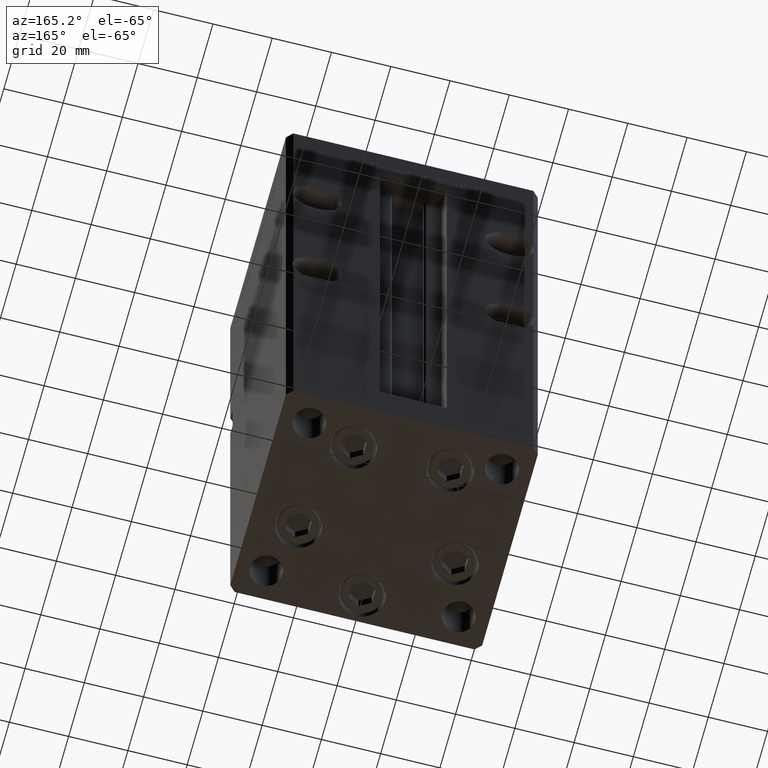
[diagram: clean part render]
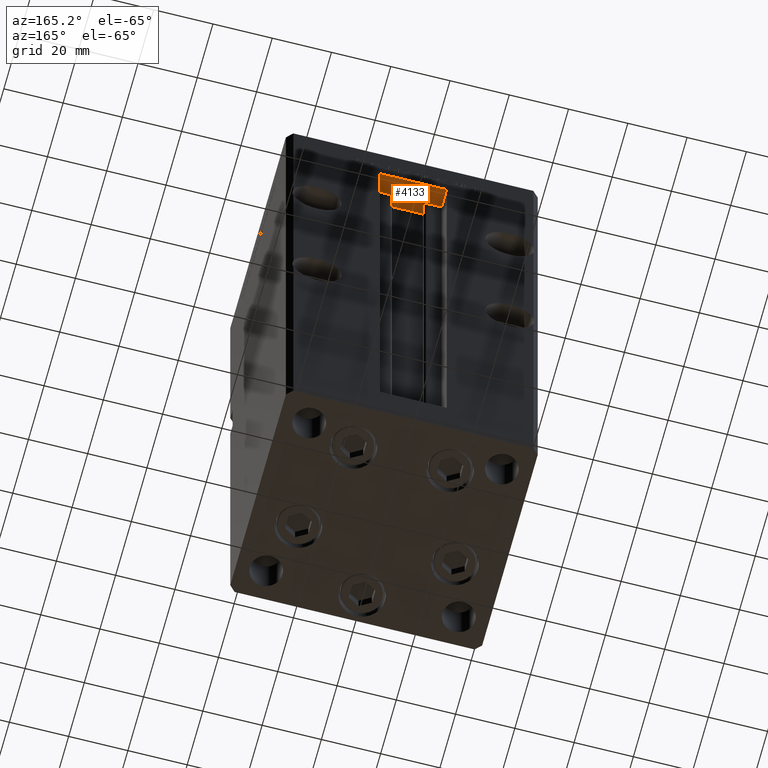
[diagram: same view with one face highlighted and labeled with its STEP entity id]
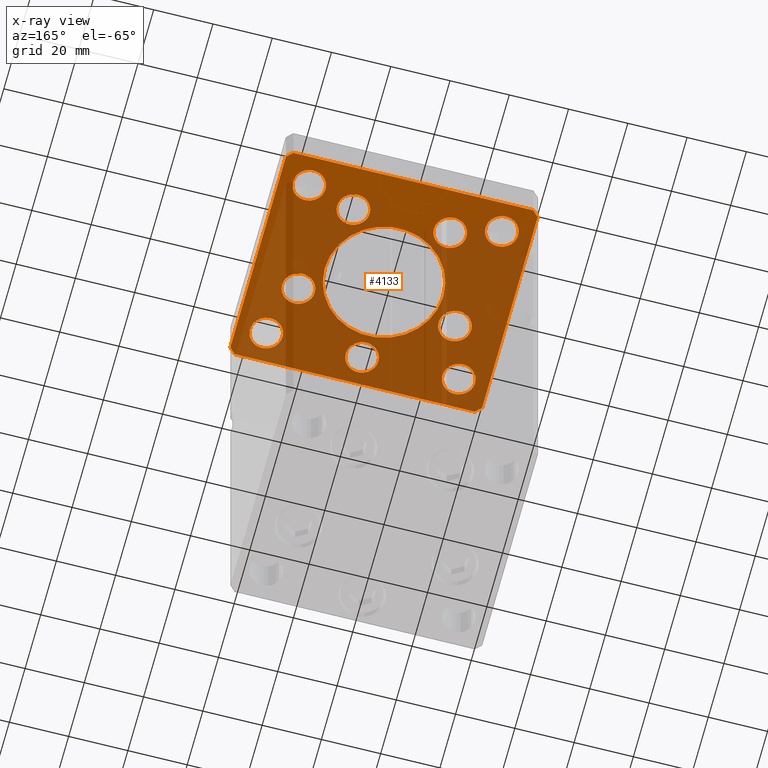
[diagram: x-ray of the same camera — body ghosted, the highlighted face saturated]
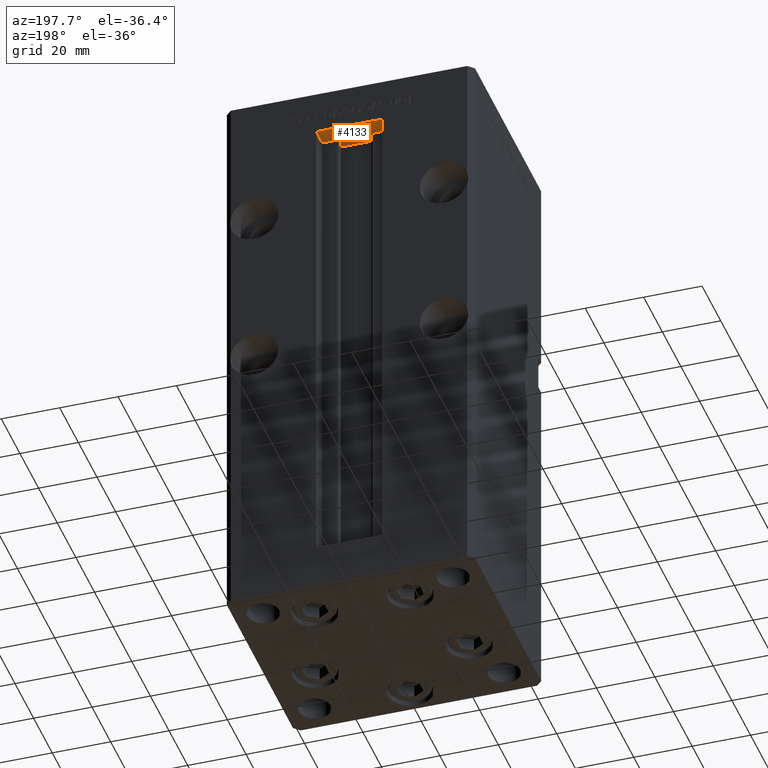
[diagram: same view with one face highlighted and labeled with its STEP entity id]
A machine part, auxiliary view. The second image highlights one B-rep face of the part: STEP entity #4133.
The next image is the same camera in x-ray: the body ghosted, the highlighted face saturated — about 76% of this face is hidden behind the body in this view.
A second angle (auxiliary view) of the same face is appended — the face is thin or edge-on in the first view.
In plain terms, the highlighted planar face has unit normal (0, 0, 1).
Its self-contained STEP definition (entity closure, byte-faithful):
#14 = ORIENTED_EDGE ( 'NONE', *, *, #29568, .F. ) ;
#35 = DIRECTION ( 'NONE',  ( -1.000000000000000000, 0.000000000000000000, 0.000000000000000000 ) ) ;
#328 = ORIENTED_EDGE ( 'NONE', *, *, #3271, .F. ) ;
#476 = CARTESIAN_POINT ( 'NONE',  ( 16.32291334290544071, 22.74999999999999289, -15.00000000000000000 ) ) ;
#714 = CARTESIAN_POINT ( 'NONE',  ( 20.00000000000000000, 0.000000000000000000, -15.00000000000000000 ) ) ;
#941 = DIRECTION ( 'NONE',  ( 1.000000000000000000, 0.000000000000000000, 0.000000000000000000 ) ) ;
#1140 = EDGE_CURVE ( 'NONE', #1515, #11343, #43967, .T. ) ;
#1282 = CIRCLE ( 'NONE', #42509, 5.499999999999998224 ) ;
#1515 = VERTEX_POINT ( 'NONE', #41867 ) ;
#1537 = EDGE_CURVE ( 'NONE', #8066, #38790, #33632, .T. ) ;
#1570 = VERTEX_POINT ( 'NONE', #10405 ) ;
#1741 = DIRECTION ( 'NONE',  ( 0.000000000000000000, -0.000000000000000000, -1.000000000000000000 ) ) ;
#1975 = DIRECTION ( 'NONE',  ( 0.000000000000000000, -0.000000000000000000, -1.000000000000000000 ) ) ;
#2226 = CIRCLE ( 'NONE', #16844, 20.00000000000000000 ) ;
#2356 = CIRCLE ( 'NONE', #22994, 5.500000000000000000 ) ;
#2582 = EDGE_LOOP ( 'NONE', ( #48048, #14520, #29853, #44793, #3526, #21968, #39873, #32935 ) ) ;
#2736 = CIRCLE ( 'NONE', #43970, 5.499999999999998224 ) ;
#2750 = FACE_BOUND ( 'NONE', #37787, .T. ) ;
#3020 = FACE_BOUND ( 'NONE', #27595, .T. ) ;
#3207 = CARTESIAN_POINT ( 'NONE',  ( 32.50000000000000000, 27.49999999999999645, -15.00000000000000000 ) ) ;
#3271 = EDGE_CURVE ( 'NONE', #17419, #29354, #3615, .T. ) ;
#3372 = DIRECTION ( 'NONE',  ( 0.000000000000000000, -0.000000000000000000, -1.000000000000000000 ) ) ;
#3526 = ORIENTED_EDGE ( 'NONE', *, *, #12925, .F. ) ;
#3615 = CIRCLE ( 'NONE', #26809, 5.499999999999998224 ) ;
#3628 = ORIENTED_EDGE ( 'NONE', *, *, #36153, .F. ) ;
#3660 = AXIS2_PLACEMENT_3D ( 'NONE', #29109, #12168, #29368 ) ;
#3822 = DIRECTION ( 'NONE',  ( -1.000000000000000000, -4.283267841918041508E-16, 0.000000000000000000 ) ) ;
#4133 = ADVANCED_FACE ( 'NONE', ( #3020, #19440, #2750, #52246, #19167, #23469, #15404, #31808, #33128, #17001, #4618 ), #8129, .F. ) ;
#4169 = CARTESIAN_POINT ( 'NONE',  ( -32.50000000000000000, -27.50000000000000355, -15.00000000000000000 ) ) ;
#4363 = CIRCLE ( 'NONE', #14660, 5.499999999999998224 ) ;
#4618 = FACE_BOUND ( 'NONE', #13024, .T. ) ;
#5037 = ORIENTED_EDGE ( 'NONE', *, *, #1140, .F. ) ;
#5042 = LINE ( 'NONE', #26258, #32296 ) ;
#5299 = DIRECTION ( 'NONE',  ( 1.000000000000000000, 0.000000000000000000, 0.000000000000000000 ) ) ;
#5759 = VERTEX_POINT ( 'NONE', #35970 ) ;
#6264 = DIRECTION ( 'NONE',  ( -0.7071067811865536790, -0.7071067811865414665, 0.000000000000000000 ) ) ;
#6442 = CIRCLE ( 'NONE', #12488, 5.499999999999998224 ) ;
#6707 = AXIS2_PLACEMENT_3D ( 'NONE', #11982, #24611, #28381 ) ;
#6793 = EDGE_CURVE ( 'NONE', #40954, #18145, #9435, .T. ) ;
#7046 = VERTEX_POINT ( 'NONE', #33036 ) ;
#7089 = VERTEX_POINT ( 'NONE', #36540 ) ;
#7226 = VECTOR ( 'NONE', #41495, 1000.000000000000114 ) ;
#7548 = VERTEX_POINT ( 'NONE', #18431 ) ;
#7672 = EDGE_CURVE ( 'NONE', #7548, #13899, #17055, .T. ) ;
#7814 = EDGE_CURVE ( 'NONE', #44848, #7046, #26107, .T. ) ;
#8066 = VERTEX_POINT ( 'NONE', #30600 ) ;
#8074 = AXIS2_PLACEMENT_3D ( 'NONE', #3207, #40563, #52170 ) ;
#8076 = LINE ( 'NONE', #45194, #27141 ) ;
#8112 = DIRECTION ( 'NONE',  ( 0.000000000000000000, -0.000000000000000000, -1.000000000000000000 ) ) ;
#8129 = PLANE ( 'NONE',  #3660 ) ;
#8186 = EDGE_CURVE ( 'NONE', #45320, #44815, #10654, .T. ) ;
#8392 = DIRECTION ( 'NONE',  ( -0.000000000000000000, -0.000000000000000000, -1.000000000000000000 ) ) ;
#8508 = CARTESIAN_POINT ( 'NONE',  ( -20.89865316429778019, -9.333333333333330373, -15.00000000000000000 ) ) ;
#8907 = CARTESIAN_POINT ( 'NONE',  ( 16.32291334290544071, 22.74999999999999289, -15.00000000000000000 ) ) ;
#9121 = CARTESIAN_POINT ( 'NONE',  ( 32.50000000000000000, -27.50000000000000355, -15.00000000000000000 ) ) ;
#9155 = ORIENTED_EDGE ( 'NONE', *, *, #11051, .T. ) ;
#9435 = LINE ( 'NONE', #51092, #49273 ) ;
#10114 = ORIENTED_EDGE ( 'NONE', *, *, #30519, .F. ) ;
#10205 = CARTESIAN_POINT ( 'NONE',  ( -20.00000000000000000, 2.449293598294706513E-15, -15.00000000000000000 ) ) ;
#10405 = CARTESIAN_POINT ( 'NONE',  ( 42.50000000000001421, 35.50000000000002132, -15.00000000000000000 ) ) ;
#10465 = AXIS2_PLACEMENT_3D ( 'NONE', #476, #24694, #5299 ) ;
#10654 = CIRCLE ( 'NONE', #51873, 5.500000000000000000 ) ;
#11051 = EDGE_CURVE ( 'NONE', #7046, #44848, #26222, .T. ) ;
#11343 = VERTEX_POINT ( 'NONE', #11648 ) ;
#11348 = AXIS2_PLACEMENT_3D ( 'NONE', #43726, #3372, #28127 ) ;
#11605 = CARTESIAN_POINT ( 'NONE',  ( -27.00000000000000355, 27.50000000000000711, -15.00000000000000000 ) ) ;
#11648 = CARTESIAN_POINT ( 'NONE',  ( 5.500000000000000000, -28.00000000000000000, -15.00000000000000000 ) ) ;
#11807 = CARTESIAN_POINT ( 'NONE',  ( 0.000000000000000000, 0.000000000000000000, -15.00000000000000000 ) ) ;
#11961 = EDGE_CURVE ( 'NONE', #46320, #34257, #34685, .T. ) ;
#11982 = CARTESIAN_POINT ( 'NONE',  ( 32.50000000000000000, -27.50000000000000355, -15.00000000000000000 ) ) ;
#12168 = DIRECTION ( 'NONE',  ( -0.000000000000000000, 0.000000000000000000, 1.000000000000000000 ) ) ;
#12488 = AXIS2_PLACEMENT_3D ( 'NONE', #45234, #8392, #35 ) ;
#12560 = CARTESIAN_POINT ( 'NONE',  ( -42.50000000000000711, 35.50000000000000000, -15.00000000000000000 ) ) ;
#12601 = CIRCLE ( 'NONE', #18580, 5.499999999999998224 ) ;
#12782 = DIRECTION ( 'NONE',  ( 1.000000000000000000, 0.000000000000000000, 0.000000000000000000 ) ) ;
#12925 = EDGE_CURVE ( 'NONE', #1570, #19723, #25319, .T. ) ;
#13024 = EDGE_LOOP ( 'NONE', ( #3628, #328 ) ) ;
#13193 = EDGE_LOOP ( 'NONE', ( #18015, #10114 ) ) ;
#13586 = CARTESIAN_POINT ( 'NONE',  ( 0.000000000000000000, -28.00000000000000000, -15.00000000000000000 ) ) ;
#13894 = DIRECTION ( 'NONE',  ( 1.000000000000000000, 1.370645709413773283E-15, 0.000000000000000000 ) ) ;
#13899 = VERTEX_POINT ( 'NONE', #15329 ) ;
#14520 = ORIENTED_EDGE ( 'NONE', *, *, #6793, .F. ) ;
#14660 = AXIS2_PLACEMENT_3D ( 'NONE', #4169, #37237, #12782 ) ;
#14953 = ORIENTED_EDGE ( 'NONE', *, *, #8186, .F. ) ;
#15329 = CARTESIAN_POINT ( 'NONE',  ( 42.50000000000000711, -35.49999999999992895, -15.00000000000000000 ) ) ;
#15359 = CARTESIAN_POINT ( 'NONE',  ( 27.00000000000000355, -27.50000000000000355, -15.00000000000000000 ) ) ;
#15389 = VECTOR ( 'NONE', #40008, 1000.000000000000000 ) ;
#15404 = FACE_BOUND ( 'NONE', #52336, .T. ) ;
#15833 = VECTOR ( 'NONE', #42214, 1000.000000000000000 ) ;
#16000 = VERTEX_POINT ( 'NONE', #49164 ) ;
#16211 = EDGE_CURVE ( 'NONE', #27263, #7548, #5042, .T. ) ;
#16458 = EDGE_CURVE ( 'NONE', #17747, #52400, #2226, .T. ) ;
#16802 = AXIS2_PLACEMENT_3D ( 'NONE', #48627, #23875, #32476 ) ;
#16830 = AXIS2_PLACEMENT_3D ( 'NONE', #17601, #1975, #46900 ) ;
#16844 = AXIS2_PLACEMENT_3D ( 'NONE', #43056, #47107, #22913 ) ;
#16845 = EDGE_LOOP ( 'NONE', ( #26345, #14953 ) ) ;
#17001 = FACE_BOUND ( 'NONE', #25032, .T. ) ;
#17055 = LINE ( 'NONE', #33443, #7226 ) ;
#17198 = AXIS2_PLACEMENT_3D ( 'NONE', #11807, #19871, #24179 ) ;
#17419 = VERTEX_POINT ( 'NONE', #15359 ) ;
#17601 = CARTESIAN_POINT ( 'NONE',  ( -26.39865316429777664, -9.333333333333330373, -15.00000000000000000 ) ) ;
#17675 = EDGE_LOOP ( 'NONE', ( #32034, #19608 ) ) ;
#17747 = VERTEX_POINT ( 'NONE', #10205 ) ;
#17980 = DIRECTION ( 'NONE',  ( -1.000000000000000000, 0.000000000000000000, 0.000000000000000000 ) ) ;
#18015 = ORIENTED_EDGE ( 'NONE', *, *, #1537, .F. ) ;
#18145 = VERTEX_POINT ( 'NONE', #45071 ) ;
#18167 = CARTESIAN_POINT ( 'NONE',  ( -26.39865316429777664, -9.333333333333330373, -15.00000000000000000 ) ) ;
#18255 = EDGE_LOOP ( 'NONE', ( #30934, #19347 ) ) ;
#18360 = CARTESIAN_POINT ( 'NONE',  ( -31.89865316429777664, -9.333333333333330373, -15.00000000000000000 ) ) ;
#18431 = CARTESIAN_POINT ( 'NONE',  ( 40.50000000000001421, -37.49999999999992184, -15.00000000000000000 ) ) ;
#18580 = AXIS2_PLACEMENT_3D ( 'NONE', #36146, #39117, #47472 ) ;
#19167 = FACE_BOUND ( 'NONE', #13193, .T. ) ;
#19347 = ORIENTED_EDGE ( 'NONE', *, *, #47841, .T. ) ;
#19440 = FACE_BOUND ( 'NONE', #23637, .T. ) ;
#19608 = ORIENTED_EDGE ( 'NONE', *, *, #51587, .F. ) ;
#19723 = VERTEX_POINT ( 'NONE', #31248 ) ;
#19780 = CARTESIAN_POINT ( 'NONE',  ( -16.32291334290544071, 22.74999999999999289, -15.00000000000000000 ) ) ;
#19871 = DIRECTION ( 'NONE',  ( 0.000000000000000000, -0.000000000000000000, -1.000000000000000000 ) ) ;
#20007 = CARTESIAN_POINT ( 'NONE',  ( -21.82291334290544071, 22.74999999999999289, -15.00000000000000000 ) ) ;
#20454 = EDGE_CURVE ( 'NONE', #48544, #40954, #34491, .T. ) ;
#20731 = CARTESIAN_POINT ( 'NONE',  ( -10.82291334290544249, 22.74999999999999289, -15.00000000000000000 ) ) ;
#21051 = CIRCLE ( 'NONE', #44184, 5.499999999999998224 ) ;
#21078 = CARTESIAN_POINT ( 'NONE',  ( -38.00000000000000000, -27.50000000000000355, -15.00000000000000000 ) ) ;
#21102 = CARTESIAN_POINT ( 'NONE',  ( 31.89865316429777664, -9.333333333333330373, -15.00000000000000000 ) ) ;
#21968 = ORIENTED_EDGE ( 'NONE', *, *, #41833, .F. ) ;
#21970 = DIRECTION ( 'NONE',  ( 1.000000000000000000, 0.000000000000000000, 0.000000000000000000 ) ) ;
#22151 = EDGE_CURVE ( 'NONE', #50425, #7089, #21051, .T. ) ;
#22202 = ORIENTED_EDGE ( 'NONE', *, *, #31206, .F. ) ;
#22783 = EDGE_CURVE ( 'NONE', #5759, #45464, #1282, .T. ) ;
#22913 = DIRECTION ( 'NONE',  ( 1.000000000000000000, 0.000000000000000000, 0.000000000000000000 ) ) ;
#22994 = AXIS2_PLACEMENT_3D ( 'NONE', #13586, #37791, #941 ) ;
#23132 = EDGE_CURVE ( 'NONE', #43514, #16000, #6442, .T. ) ;
#23301 = ORIENTED_EDGE ( 'NONE', *, *, #45906, .F. ) ;
#23331 = DIRECTION ( 'NONE',  ( 1.000000000000000000, 0.000000000000000000, 0.000000000000000000 ) ) ;
#23469 = FACE_BOUND ( 'NONE', #16845, .T. ) ;
#23637 = EDGE_LOOP ( 'NONE', ( #14, #52115 ) ) ;
#23875 = DIRECTION ( 'NONE',  ( 0.000000000000000000, 0.000000000000000000, 1.000000000000000000 ) ) ;
#23892 = LINE ( 'NONE', #41070, #15389 ) ;
#24179 = DIRECTION ( 'NONE',  ( 1.000000000000000000, 0.000000000000000000, 0.000000000000000000 ) ) ;
#24611 = DIRECTION ( 'NONE',  ( -0.000000000000000000, -0.000000000000000000, -1.000000000000000000 ) ) ;
#24694 = DIRECTION ( 'NONE',  ( 0.000000000000000000, -0.000000000000000000, -1.000000000000000000 ) ) ;
#25032 = EDGE_LOOP ( 'NONE', ( #49578, #22202 ) ) ;
#25319 = LINE ( 'NONE', #41699, #15833 ) ;
#26107 = CIRCLE ( 'NONE', #8074, 5.499999999999998224 ) ;
#26222 = CIRCLE ( 'NONE', #16802, 5.499999999999998224 ) ;
#26258 = CARTESIAN_POINT ( 'NONE',  ( -40.50000000000000711, -37.50000000000003553, -15.00000000000000000 ) ) ;
#26345 = ORIENTED_EDGE ( 'NONE', *, *, #36048, .F. ) ;
#26809 = AXIS2_PLACEMENT_3D ( 'NONE', #9121, #33825, #17980 ) ;
#26824 = CARTESIAN_POINT ( 'NONE',  ( -32.50000000000000000, -27.50000000000000355, -15.00000000000000000 ) ) ;
#27093 = DIRECTION ( 'NONE',  ( 0.000000000000000000, 0.000000000000000000, 1.000000000000000000 ) ) ;
#27099 = CARTESIAN_POINT ( 'NONE',  ( -16.32291334290544071, 22.74999999999999289, -15.00000000000000000 ) ) ;
#27141 = VECTOR ( 'NONE', #37112, 1000.000000000000000 ) ;
#27176 = AXIS2_PLACEMENT_3D ( 'NONE', #8907, #8112, #36882 ) ;
#27192 = DIRECTION ( 'NONE',  ( 1.000000000000000000, 0.000000000000000000, 0.000000000000000000 ) ) ;
#27263 = VERTEX_POINT ( 'NONE', #46724 ) ;
#27595 = EDGE_LOOP ( 'NONE', ( #23301, #47296 ) ) ;
#28046 = LINE ( 'NONE', #51982, #28474 ) ;
#28127 = DIRECTION ( 'NONE',  ( 1.000000000000000000, 0.000000000000000000, 0.000000000000000000 ) ) ;
#28179 = CIRCLE ( 'NONE', #50507, 5.500000000000000000 ) ;
#28381 = DIRECTION ( 'NONE',  ( -1.000000000000000000, 0.000000000000000000, 0.000000000000000000 ) ) ;
#28474 = VECTOR ( 'NONE', #3822, 1000.000000000000000 ) ;
#29109 = CARTESIAN_POINT ( 'NONE',  ( 0.000000000000000000, 0.000000000000000000, -15.00000000000000000 ) ) ;
#29341 = CARTESIAN_POINT ( 'NONE',  ( 10.82291334290544604, 22.74999999999999289, -15.00000000000000000 ) ) ;
#29354 = VERTEX_POINT ( 'NONE', #49419 ) ;
#29368 = DIRECTION ( 'NONE',  ( 1.000000000000000000, 0.000000000000000000, 0.000000000000000000 ) ) ;
#29568 = EDGE_CURVE ( 'NONE', #34257, #46320, #35722, .T. ) ;
#29853 = ORIENTED_EDGE ( 'NONE', *, *, #20454, .F. ) ;
#30221 = EDGE_CURVE ( 'NONE', #18145, #27263, #8076, .T. ) ;
#30287 = CARTESIAN_POINT ( 'NONE',  ( 26.39865316429777664, -9.333333333333330373, -15.00000000000000000 ) ) ;
#30318 = DIRECTION ( 'NONE',  ( 1.000000000000000000, 0.000000000000000000, 0.000000000000000000 ) ) ;
#30417 = DIRECTION ( 'NONE',  ( 0.000000000000000000, -0.000000000000000000, -1.000000000000000000 ) ) ;
#30519 = EDGE_CURVE ( 'NONE', #38790, #8066, #40049, .T. ) ;
#30600 = CARTESIAN_POINT ( 'NONE',  ( 21.82291334290544071, 22.74999999999999289, -15.00000000000000000 ) ) ;
#30934 = ORIENTED_EDGE ( 'NONE', *, *, #22783, .T. ) ;
#31206 = EDGE_CURVE ( 'NONE', #16000, #43514, #12601, .T. ) ;
#31248 = CARTESIAN_POINT ( 'NONE',  ( 40.50000000000000711, 37.50000000000000711, -15.00000000000000000 ) ) ;
#31348 = DIRECTION ( 'NONE',  ( 1.000000000000000000, 0.000000000000000000, 0.000000000000000000 ) ) ;
#31808 = FACE_BOUND ( 'NONE', #18255, .T. ) ;
#32034 = ORIENTED_EDGE ( 'NONE', *, *, #22151, .F. ) ;
#32296 = VECTOR ( 'NONE', #13894, 1000.000000000000000 ) ;
#32476 = DIRECTION ( 'NONE',  ( 1.000000000000000000, 0.000000000000000000, 0.000000000000000000 ) ) ;
#32935 = ORIENTED_EDGE ( 'NONE', *, *, #16211, .F. ) ;
#33036 = CARTESIAN_POINT ( 'NONE',  ( 27.00000000000000355, 27.49999999999999645, -15.00000000000000000 ) ) ;
#33128 = FACE_OUTER_BOUND ( 'NONE', #2582, .T. ) ;
#33443 = CARTESIAN_POINT ( 'NONE',  ( 40.50000000000001421, -37.49999999999992184, -15.00000000000000000 ) ) ;
#33632 = CIRCLE ( 'NONE', #10465, 5.499999999999998224 ) ;
#33825 = DIRECTION ( 'NONE',  ( -0.000000000000000000, -0.000000000000000000, -1.000000000000000000 ) ) ;
#34107 = ORIENTED_EDGE ( 'NONE', *, *, #7814, .T. ) ;
#34205 = EDGE_CURVE ( 'NONE', #11343, #1515, #2356, .T. ) ;
#34257 = VERTEX_POINT ( 'NONE', #8508 ) ;
#34315 = DIRECTION ( 'NONE',  ( 0.000000000000000000, -0.000000000000000000, -1.000000000000000000 ) ) ;
#34491 = LINE ( 'NONE', #50903, #49330 ) ;
#34685 = CIRCLE ( 'NONE', #42525, 5.499999999999998224 ) ;
#35722 = CIRCLE ( 'NONE', #16830, 5.499999999999998224 ) ;
#35892 = DIRECTION ( 'NONE',  ( 0.000000000000000000, -0.000000000000000000, -1.000000000000000000 ) ) ;
#35970 = CARTESIAN_POINT ( 'NONE',  ( -27.00000000000000355, -27.50000000000000355, -15.00000000000000000 ) ) ;
#36048 = EDGE_CURVE ( 'NONE', #44815, #45320, #28179, .T. ) ;
#36146 = CARTESIAN_POINT ( 'NONE',  ( -32.50000000000000000, 27.50000000000000711, -15.00000000000000000 ) ) ;
#36153 = EDGE_CURVE ( 'NONE', #29354, #17419, #41894, .T. ) ;
#36179 = ORIENTED_EDGE ( 'NONE', *, *, #34205, .F. ) ;
#36540 = CARTESIAN_POINT ( 'NONE',  ( 20.89865316429778019, -9.333333333333330373, -15.00000000000000000 ) ) ;
#36882 = DIRECTION ( 'NONE',  ( 1.000000000000000000, 0.000000000000000000, 0.000000000000000000 ) ) ;
#37112 = DIRECTION ( 'NONE',  ( 0.7071067811865487940, -0.7071067811865463515, 0.000000000000000000 ) ) ;
#37125 = CARTESIAN_POINT ( 'NONE',  ( 38.00000000000000000, 27.49999999999999645, -15.00000000000000000 ) ) ;
#37237 = DIRECTION ( 'NONE',  ( 0.000000000000000000, 0.000000000000000000, 1.000000000000000000 ) ) ;
#37787 = EDGE_LOOP ( 'NONE', ( #36179, #5037 ) ) ;
#37791 = DIRECTION ( 'NONE',  ( 0.000000000000000000, -0.000000000000000000, -1.000000000000000000 ) ) ;
#38790 = VERTEX_POINT ( 'NONE', #29341 ) ;
#39007 = CARTESIAN_POINT ( 'NONE',  ( 26.39865316429777664, -9.333333333333330373, -15.00000000000000000 ) ) ;
#39117 = DIRECTION ( 'NONE',  ( -0.000000000000000000, -0.000000000000000000, -1.000000000000000000 ) ) ;
#39873 = ORIENTED_EDGE ( 'NONE', *, *, #7672, .F. ) ;
#40008 = DIRECTION ( 'NONE',  ( 9.773090005503145261E-17, 1.000000000000000000, 0.000000000000000000 ) ) ;
#40049 = CIRCLE ( 'NONE', #27176, 5.499999999999998224 ) ;
#40563 = DIRECTION ( 'NONE',  ( 0.000000000000000000, 0.000000000000000000, 1.000000000000000000 ) ) ;
#40954 = VERTEX_POINT ( 'NONE', #12560 ) ;
#41070 = CARTESIAN_POINT ( 'NONE',  ( 42.50000000000000711, -35.49999999999992895, -15.00000000000000000 ) ) ;
#41495 = DIRECTION ( 'NONE',  ( 0.7071067811865474617, 0.7071067811865474617, 0.000000000000000000 ) ) ;
#41699 = CARTESIAN_POINT ( 'NONE',  ( 42.50000000000001421, 35.50000000000002132, -15.00000000000000000 ) ) ;
#41833 = EDGE_CURVE ( 'NONE', #13899, #1570, #23892, .T. ) ;
#41867 = CARTESIAN_POINT ( 'NONE',  ( -5.500000000000000000, -28.00000000000000000, -15.00000000000000000 ) ) ;
#41894 = CIRCLE ( 'NONE', #6707, 5.499999999999998224 ) ;
#42214 = DIRECTION ( 'NONE',  ( -0.7071067811865524577, 0.7071067811865426878, 0.000000000000000000 ) ) ;
#42346 = DIRECTION ( 'NONE',  ( 1.000000000000000000, 0.000000000000000000, 0.000000000000000000 ) ) ;
#42509 = AXIS2_PLACEMENT_3D ( 'NONE', #26824, #27093, #30318 ) ;
#42525 = AXIS2_PLACEMENT_3D ( 'NONE', #18167, #1741, #42346 ) ;
#43056 = CARTESIAN_POINT ( 'NONE',  ( 0.000000000000000000, 0.000000000000000000, -15.00000000000000000 ) ) ;
#43514 = VERTEX_POINT ( 'NONE', #11605 ) ;
#43527 = CARTESIAN_POINT ( 'NONE',  ( -40.50000000000000000, 37.49999999999997158, -15.00000000000000000 ) ) ;
#43726 = CARTESIAN_POINT ( 'NONE',  ( 0.000000000000000000, -28.00000000000000000, -15.00000000000000000 ) ) ;
#43967 = CIRCLE ( 'NONE', #11348, 5.500000000000000000 ) ;
#43970 = AXIS2_PLACEMENT_3D ( 'NONE', #39007, #30417, #27192 ) ;
#44184 = AXIS2_PLACEMENT_3D ( 'NONE', #30287, #34315, #21970 ) ;
#44793 = ORIENTED_EDGE ( 'NONE', *, *, #50547, .F. ) ;
#44815 = VERTEX_POINT ( 'NONE', #20731 ) ;
#44848 = VERTEX_POINT ( 'NONE', #37125 ) ;
#45071 = CARTESIAN_POINT ( 'NONE',  ( -42.50000000000000000, -35.50000000000004263, -15.00000000000000000 ) ) ;
#45194 = CARTESIAN_POINT ( 'NONE',  ( -42.50000000000000000, -35.50000000000004263, -15.00000000000000000 ) ) ;
#45234 = CARTESIAN_POINT ( 'NONE',  ( -32.50000000000000000, 27.50000000000000711, -15.00000000000000000 ) ) ;
#45320 = VERTEX_POINT ( 'NONE', #20007 ) ;
#45464 = VERTEX_POINT ( 'NONE', #21078 ) ;
#45906 = EDGE_CURVE ( 'NONE', #52400, #17747, #48129, .T. ) ;
#46271 = DIRECTION ( 'NONE',  ( 9.773090005503134168E-17, -1.000000000000000000, 0.000000000000000000 ) ) ;
#46320 = VERTEX_POINT ( 'NONE', #18360 ) ;
#46724 = CARTESIAN_POINT ( 'NONE',  ( -40.50000000000000711, -37.50000000000003553, -15.00000000000000000 ) ) ;
#46900 = DIRECTION ( 'NONE',  ( 1.000000000000000000, 0.000000000000000000, 0.000000000000000000 ) ) ;
#47107 = DIRECTION ( 'NONE',  ( 0.000000000000000000, -0.000000000000000000, -1.000000000000000000 ) ) ;
#47296 = ORIENTED_EDGE ( 'NONE', *, *, #16458, .F. ) ;
#47472 = DIRECTION ( 'NONE',  ( -1.000000000000000000, 0.000000000000000000, 0.000000000000000000 ) ) ;
#47841 = EDGE_CURVE ( 'NONE', #45464, #5759, #4363, .T. ) ;
#48048 = ORIENTED_EDGE ( 'NONE', *, *, #30221, .F. ) ;
#48129 = CIRCLE ( 'NONE', #17198, 20.00000000000000000 ) ;
#48544 = VERTEX_POINT ( 'NONE', #43527 ) ;
#48613 = DIRECTION ( 'NONE',  ( 0.000000000000000000, -0.000000000000000000, -1.000000000000000000 ) ) ;
#48627 = CARTESIAN_POINT ( 'NONE',  ( 32.50000000000000000, 27.49999999999999645, -15.00000000000000000 ) ) ;
#49164 = CARTESIAN_POINT ( 'NONE',  ( -38.00000000000000000, 27.50000000000000711, -15.00000000000000000 ) ) ;
#49273 = VECTOR ( 'NONE', #46271, 1000.000000000000000 ) ;
#49330 = VECTOR ( 'NONE', #6264, 1000.000000000000000 ) ;
#49419 = CARTESIAN_POINT ( 'NONE',  ( 38.00000000000000000, -27.50000000000000355, -15.00000000000000000 ) ) ;
#49578 = ORIENTED_EDGE ( 'NONE', *, *, #23132, .F. ) ;
#50425 = VERTEX_POINT ( 'NONE', #21102 ) ;
#50507 = AXIS2_PLACEMENT_3D ( 'NONE', #19780, #35892, #31348 ) ;
#50547 = EDGE_CURVE ( 'NONE', #19723, #48544, #28046, .T. ) ;
#50903 = CARTESIAN_POINT ( 'NONE',  ( -40.50000000000000000, 37.49999999999997158, -15.00000000000000000 ) ) ;
#51092 = CARTESIAN_POINT ( 'NONE',  ( -42.50000000000000711, 35.50000000000000000, -15.00000000000000000 ) ) ;
#51587 = EDGE_CURVE ( 'NONE', #7089, #50425, #2736, .T. ) ;
#51873 = AXIS2_PLACEMENT_3D ( 'NONE', #27099, #48613, #23331 ) ;
#51982 = CARTESIAN_POINT ( 'NONE',  ( 40.50000000000000711, 37.50000000000000711, -15.00000000000000000 ) ) ;
#52115 = ORIENTED_EDGE ( 'NONE', *, *, #11961, .F. ) ;
#52170 = DIRECTION ( 'NONE',  ( 1.000000000000000000, 0.000000000000000000, 0.000000000000000000 ) ) ;
#52246 = FACE_BOUND ( 'NONE', #17675, .T. ) ;
#52336 = EDGE_LOOP ( 'NONE', ( #34107, #9155 ) ) ;
#52400 = VERTEX_POINT ( 'NONE', #714 ) ;